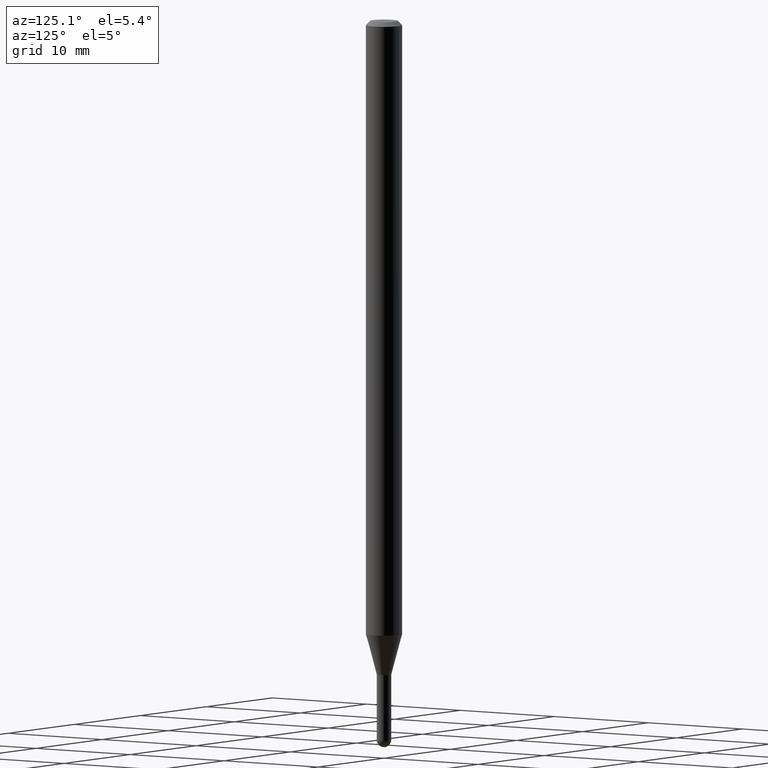
[diagram: clean part render]
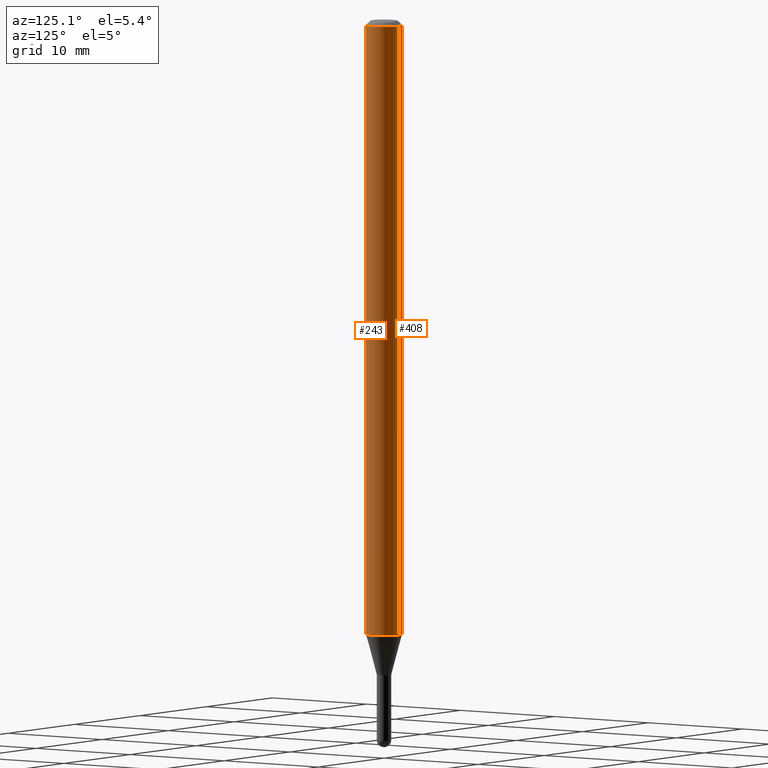
[diagram: same view with one multi-face feature highlighted, each face labeled with its STEP entity id]
A machine part, auxiliary view. The highlighted faces form ONE feature: a constant-radius fillet chain: 2 tangent blend faces with common blend radius 1.5875 mm. The faces share edges in the B-rep.
Their STEP definitions:
[1] entity #408 (Cylinder):
#14 = VERTEX_POINT ( 'NONE', #15 ) ;
#15 = CARTESIAN_POINT ( 'NONE',  ( -4.364351673553912750E-16, -0.06250000000000005551, -0.01499999999999979128 ) ) ;
#17 = EDGE_LOOP ( 'NONE', ( #468, #428, #164, #302 ) ) ;
#27 = VECTOR ( 'NONE', #493, 39.37007874015748143 ) ;
#46 = VERTEX_POINT ( 'NONE', #457 ) ;
#72 = FACE_OUTER_BOUND ( 'NONE', #17, .T. ) ;
#84 = EDGE_CURVE ( 'NONE', #375, #46, #406, .T. ) ;
#93 = CARTESIAN_POINT ( 'NONE',  ( 5.159987491556965604E-29, -7.367292793494006294E-15, -2.110048094716172606 ) ) ;
#99 = DIRECTION ( 'NONE',  ( -6.982962677686265922E-15, -1.000000000000000000, 3.483106191921935554E-15 ) ) ;
#108 = DIRECTION ( 'NONE',  ( -2.445435961615390245E-29, 3.491528374136419427E-15, 1.000000000000000000 ) ) ;
#118 = CARTESIAN_POINT ( 'NONE',  ( 4.440892098501145824E-16, 0.06249999999999995143, -0.01500000000000022669 ) ) ;
#134 = EDGE_CURVE ( 'NONE', #46, #14, #335, .T. ) ;
#138 = DIRECTION ( 'NONE',  ( -2.445435961615390245E-29, 3.491528374136419427E-15, 1.000000000000000000 ) ) ;
#139 = CARTESIAN_POINT ( 'NONE',  ( -4.364351673553916201E-16, -0.06250000000000000000, 2.182205233835262142E-16 ) ) ;
#142 = CARTESIAN_POINT ( 'NONE',  ( 3.668153942423087382E-31, -5.237292561204631655E-17, -0.01500000000000000812 ) ) ;
#143 = AXIS2_PLACEMENT_3D ( 'NONE', #282, #108, #396 ) ;
#160 = LINE ( 'NONE', #166, #390 ) ;
#164 = ORIENTED_EDGE ( 'NONE', *, *, #134, .T. ) ;
#166 = CARTESIAN_POINT ( 'NONE',  ( 4.440892098500625669E-16, 0.06250000000000000000, -2.182205233835262142E-16 ) ) ;
#270 = EDGE_CURVE ( 'NONE', #375, #361, #160, .T. ) ;
#282 = CARTESIAN_POINT ( 'NONE',  ( 0.000000000000000000, 0.000000000000000000, 0.000000000000000000 ) ) ;
#302 = ORIENTED_EDGE ( 'NONE', *, *, #380, .F. ) ;
#303 = DIRECTION ( 'NONE',  ( -2.445435961615390245E-29, 3.491528374136419427E-15, 1.000000000000000000 ) ) ;
#324 = AXIS2_PLACEMENT_3D ( 'NONE', #93, #138, #440 ) ;
#335 = LINE ( 'NONE', #139, #27 ) ;
#361 = VERTEX_POINT ( 'NONE', #118 ) ;
#375 = VERTEX_POINT ( 'NONE', #498 ) ;
#380 = EDGE_CURVE ( 'NONE', #361, #14, #417, .T. ) ;
#390 = VECTOR ( 'NONE', #432, 39.37007874015748143 ) ;
#396 = DIRECTION ( 'NONE',  ( -6.982962677686265922E-15, -1.000000000000000000, 3.491528374136419427E-15 ) ) ;
#398 = AXIS2_PLACEMENT_3D ( 'NONE', #142, #303, #99 ) ;
#400 = CYLINDRICAL_SURFACE ( 'NONE', #143, 0.06250000000000000000 ) ;
#406 = CIRCLE ( 'NONE', #324, 0.06250000000000000000 ) ;
#408 = ADVANCED_FACE ( 'NONE', ( #72 ), #400, .T. ) ;
#417 = CIRCLE ( 'NONE', #398, 0.06250000000000000000 ) ;
#428 = ORIENTED_EDGE ( 'NONE', *, *, #84, .T. ) ;
#432 = DIRECTION ( 'NONE',  ( -2.445435961615390245E-29, 3.491528374136419427E-15, 1.000000000000000000 ) ) ;
#440 = DIRECTION ( 'NONE',  ( -6.982962677686265922E-15, -1.000000000000000000, 4.370956789862821150E-15 ) ) ;
#457 = CARTESIAN_POINT ( 'NONE',  ( -4.364351673553401962E-16, -0.06250000000000738298, -2.110048094716172162 ) ) ;
#468 = ORIENTED_EDGE ( 'NONE', *, *, #270, .F. ) ;
#493 = DIRECTION ( 'NONE',  ( -2.445435961615390245E-29, 3.491528374136419427E-15, 1.000000000000000000 ) ) ;
#498 = CARTESIAN_POINT ( 'NONE',  ( 4.440892098501139907E-16, 0.06249999999999261702, -2.110048094716172606 ) ) ;
[2] entity #243 (Cylinder):
#13 = CYLINDRICAL_SURFACE ( 'NONE', #425, 0.06250000000000000000 ) ;
#14 = VERTEX_POINT ( 'NONE', #15 ) ;
#15 = CARTESIAN_POINT ( 'NONE',  ( -4.364351673553912750E-16, -0.06250000000000005551, -0.01499999999999979128 ) ) ;
#27 = VECTOR ( 'NONE', #493, 39.37007874015748143 ) ;
#46 = VERTEX_POINT ( 'NONE', #457 ) ;
#50 = DIRECTION ( 'NONE',  ( -6.982962677686265922E-15, -1.000000000000000000, 3.491528374136419427E-15 ) ) ;
#90 = AXIS2_PLACEMENT_3D ( 'NONE', #194, #278, #352 ) ;
#118 = CARTESIAN_POINT ( 'NONE',  ( 4.440892098501145824E-16, 0.06249999999999995143, -0.01500000000000022669 ) ) ;
#134 = EDGE_CURVE ( 'NONE', #46, #14, #335, .T. ) ;
#139 = CARTESIAN_POINT ( 'NONE',  ( -4.364351673553916201E-16, -0.06250000000000000000, 2.182205233835262142E-16 ) ) ;
#154 = CARTESIAN_POINT ( 'NONE',  ( 5.159987491556965604E-29, -7.367292793494006294E-15, -2.110048094716172606 ) ) ;
#160 = LINE ( 'NONE', #166, #390 ) ;
#166 = CARTESIAN_POINT ( 'NONE',  ( 4.440892098500625669E-16, 0.06250000000000000000, -2.182205233835262142E-16 ) ) ;
#174 = DIRECTION ( 'NONE',  ( -2.445435961615390245E-29, 3.491528374136419427E-15, 1.000000000000000000 ) ) ;
#194 = CARTESIAN_POINT ( 'NONE',  ( 3.668153942423087382E-31, -5.237292561204631655E-17, -0.01500000000000000812 ) ) ;
#222 = EDGE_CURVE ( 'NONE', #14, #361, #445, .T. ) ;
#243 = ADVANCED_FACE ( 'NONE', ( #246 ), #13, .T. ) ;
#246 = FACE_OUTER_BOUND ( 'NONE', #435, .T. ) ;
#269 = DIRECTION ( 'NONE',  ( -6.982962677686265922E-15, -1.000000000000000000, 4.370956789862821150E-15 ) ) ;
#270 = EDGE_CURVE ( 'NONE', #375, #361, #160, .T. ) ;
#278 = DIRECTION ( 'NONE',  ( -2.445435961615390245E-29, 3.491528374136419427E-15, 1.000000000000000000 ) ) ;
#307 = CIRCLE ( 'NONE', #349, 0.06250000000000000000 ) ;
#308 = ORIENTED_EDGE ( 'NONE', *, *, #270, .T. ) ;
#316 = EDGE_CURVE ( 'NONE', #46, #375, #307, .T. ) ;
#335 = LINE ( 'NONE', #139, #27 ) ;
#349 = AXIS2_PLACEMENT_3D ( 'NONE', #154, #467, #269 ) ;
#352 = DIRECTION ( 'NONE',  ( -6.982962677686265922E-15, -1.000000000000000000, 3.483106191921935554E-15 ) ) ;
#361 = VERTEX_POINT ( 'NONE', #118 ) ;
#363 = ORIENTED_EDGE ( 'NONE', *, *, #222, .F. ) ;
#375 = VERTEX_POINT ( 'NONE', #498 ) ;
#387 = ORIENTED_EDGE ( 'NONE', *, *, #316, .T. ) ;
#390 = VECTOR ( 'NONE', #432, 39.37007874015748143 ) ;
#407 = CARTESIAN_POINT ( 'NONE',  ( 0.000000000000000000, 0.000000000000000000, 0.000000000000000000 ) ) ;
#416 = ORIENTED_EDGE ( 'NONE', *, *, #134, .F. ) ;
#425 = AXIS2_PLACEMENT_3D ( 'NONE', #407, #174, #50 ) ;
#432 = DIRECTION ( 'NONE',  ( -2.445435961615390245E-29, 3.491528374136419427E-15, 1.000000000000000000 ) ) ;
#435 = EDGE_LOOP ( 'NONE', ( #387, #308, #363, #416 ) ) ;
#445 = CIRCLE ( 'NONE', #90, 0.06250000000000000000 ) ;
#457 = CARTESIAN_POINT ( 'NONE',  ( -4.364351673553401962E-16, -0.06250000000000738298, -2.110048094716172162 ) ) ;
#467 = DIRECTION ( 'NONE',  ( -2.445435961615390245E-29, 3.491528374136419427E-15, 1.000000000000000000 ) ) ;
#493 = DIRECTION ( 'NONE',  ( -2.445435961615390245E-29, 3.491528374136419427E-15, 1.000000000000000000 ) ) ;
#498 = CARTESIAN_POINT ( 'NONE',  ( 4.440892098501139907E-16, 0.06249999999999261702, -2.110048094716172606 ) ) ;